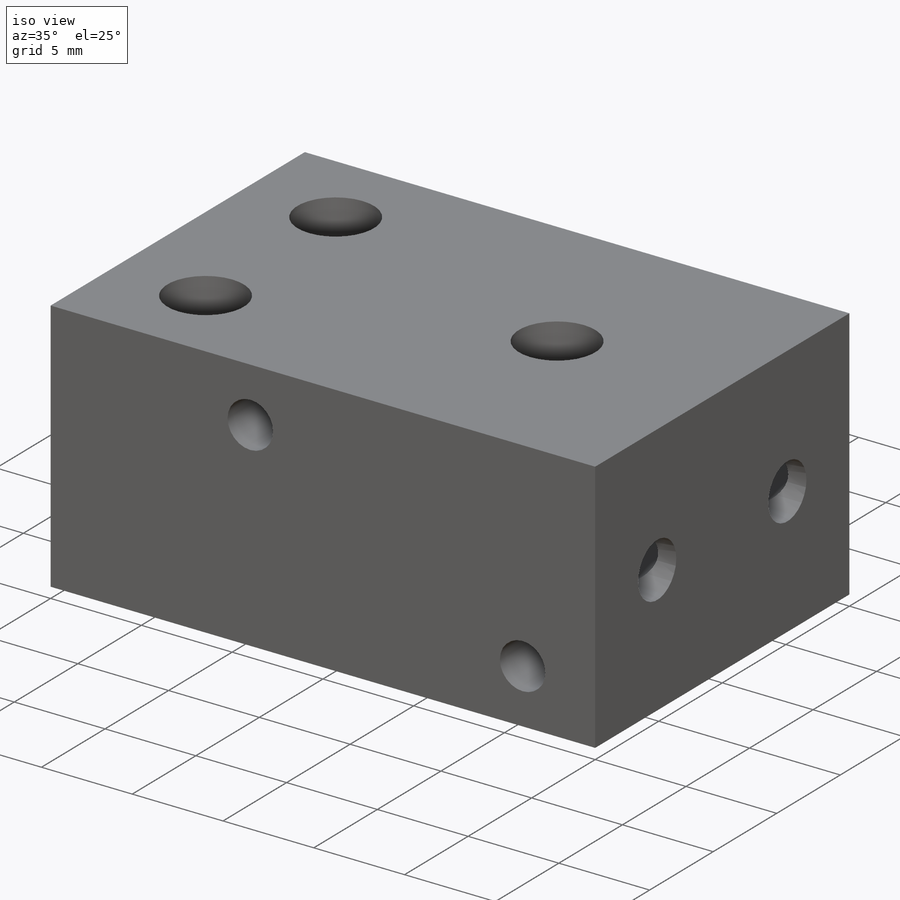
[diagram: iso view]
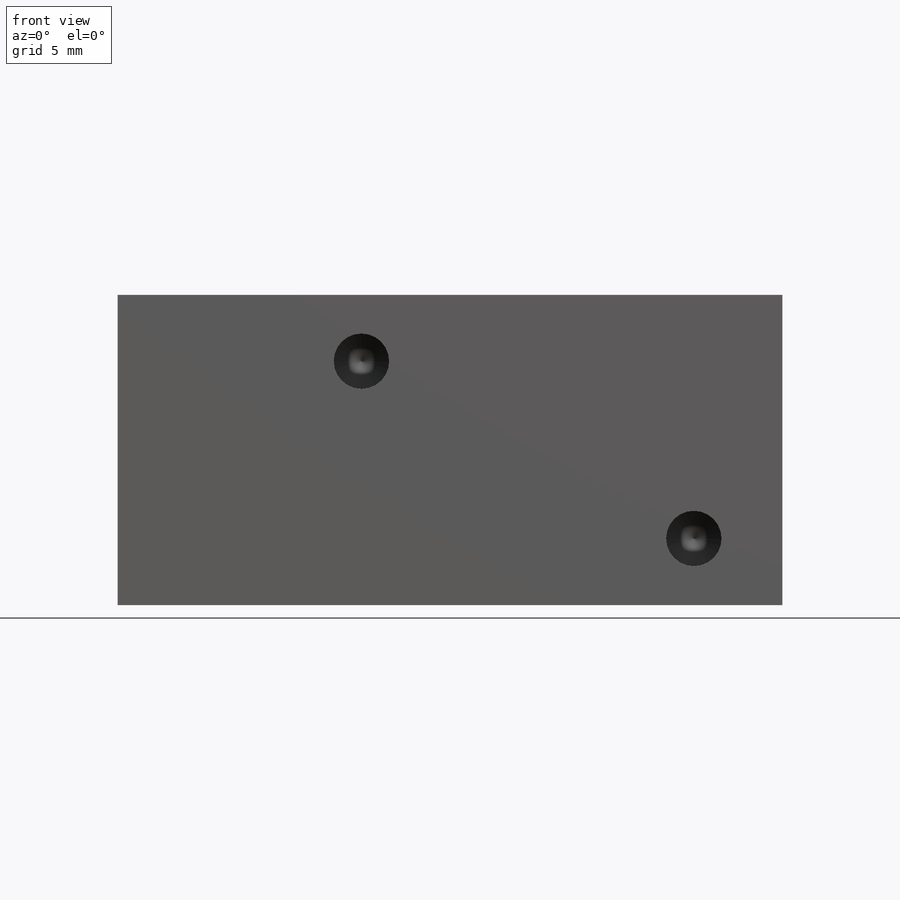
[diagram: front view]
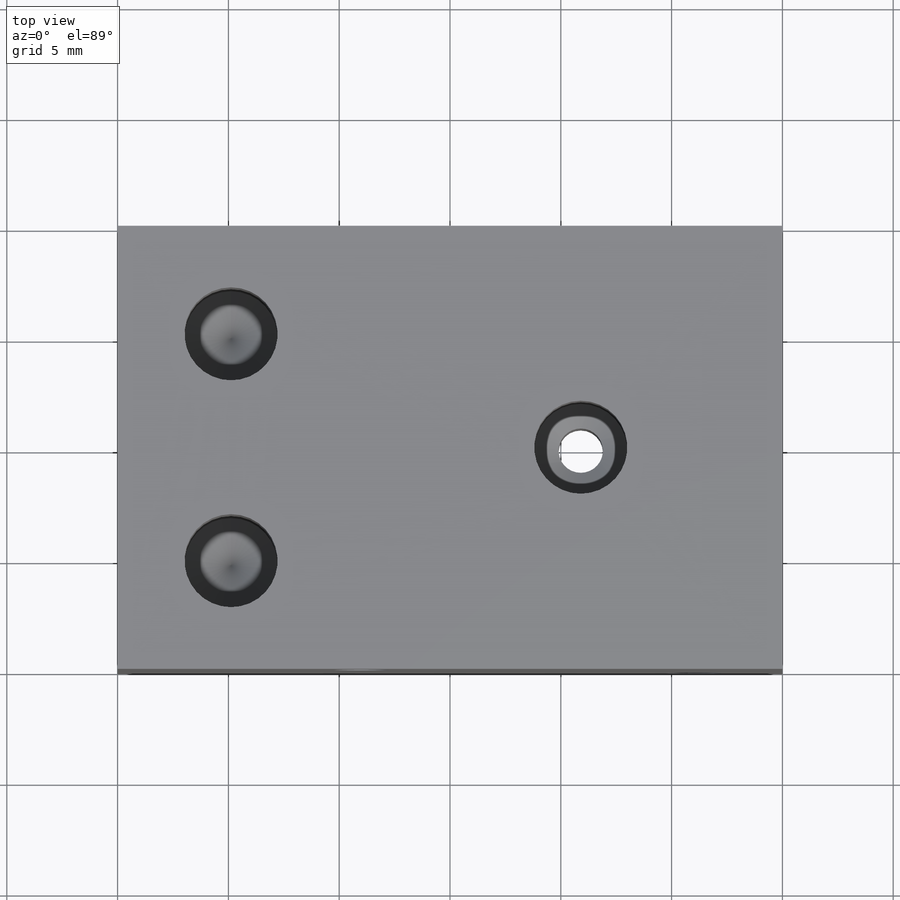
[diagram: top view]
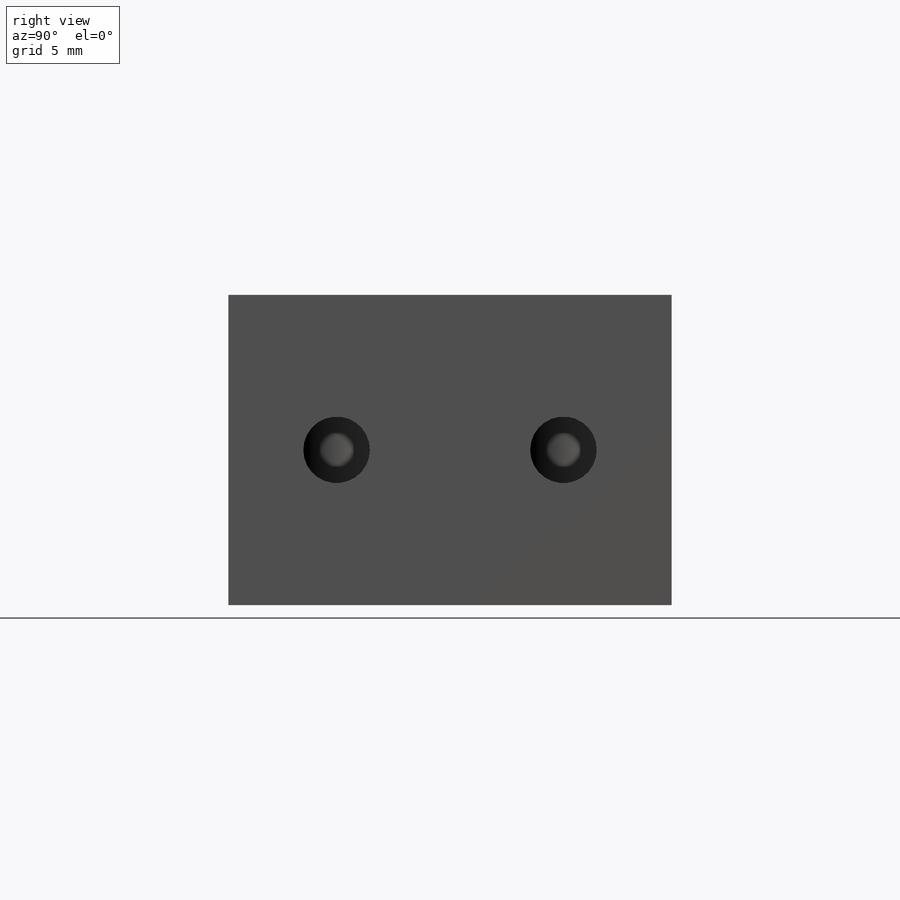
[diagram: right view]
SOLIDWORKS PART (.sldprt)
format: sldprt  version: not decoded by parser v0  size: 448,512 bytes
history: native  units: mm
features: sketch x16, hole x5, thread x4, material x1, extrude x1, cut_extrude x1, mirror x1 (+13 scaffold rows collapsed)
feature tree (42):
  scaffold x13  (default folders/planes/origin — collapsed)
  material  "Material <not specified>"
  sketch  "Sketch1"  dims[D1=30.0mm D2=14.0mm]
  extrude  "Boss-Extrude1"  Depth=20mm
  sketch  "Sketch2"  dims[c1.D1=~3.297304mm c1.D2=3.0mm c2.D1=2.0mm]
  sketch  "Sketch3"  dims[D1=5.0mm D2=2.0mm D3=1.0mm]
  cut_extrude  "Cut-Extrude2"  [1 undecoded]
  hole  "M5 Tapped Hole1"  Diameter=4.2mm Depth=8mm
  sketch  "Sketch5"
  sketch  "Sketch4"  dims[hole-wizard template sketch: 47 standard entries collapsed; hole parameters kept: c15.Tap Drill Depth=8.0mm c15.D3=~14.816244mm c15.Drill Angle=118.0deg]
  thread  "Hole Thread1"  Diameter=5mm  [1 undecoded]
  sketch  "Sketch6"  dims[D1=8.0mm D2=0.5mm D3=8.0mm D4=0.5mm]
  hole  "M5 Tapped Hole2"  Diameter=4.2mm Depth=10mm
  sketch  "Sketch8"
  sketch  "Sketch7"  dims[hole-wizard template sketch: 47 standard entries collapsed; hole parameters kept: c15.Tap Drill Depth=10.0mm c15.D3=~14.816244mm c15.Drill Angle=118.0deg]
  thread  "Hole Thread2"  Diameter=5mm  [1 undecoded]
  mirror  "Mirror1"
  sketch  "Sketch17"  dims[D1=3.0mm D2=1.0mm]
  hole  "Ø3.0 (3) Diameter Hole4"  Diameter=3mm Depth=15mm
  sketch  "Sketch19"
  sketch  "Sketch18"  dims[hole-wizard template sketch: 50 standard entries collapsed; hole parameters above]
  sketch  "Sketch20"
  hole  "Ø3.0 (3) Diameter Hole5"  Diameter=3mm Depth=25mm
  sketch  "Sketch22"
  sketch  "Sketch21"  dims[hole-wizard template sketch: 47 standard entries collapsed; hole parameters kept: c15.Hole Depth=25.0mm c15.D3=~14.816244mm c15.Drill Angle=118.0deg]
  hole  "M3 Tapped Hole1"  Diameter=2.5mm Depth=7.5mm
  sketch  "Sketch25"  dims[D1=4.0mm D2=4.0mm D3=11.0mm D4=4.0mm]
  sketch  "Sketch24"  dims[hole-wizard template sketch: 50 standard entries collapsed; hole parameters above]
  thread  "Hole Thread4"  Diameter=5mm  [1 undecoded]
  thread  "Hole Thread5"  Diameter=5mm  [1 undecoded]
decode coverage: 21 of 28 modeling features carry decoded parameters
note: ~ marks probable driven/reference dimensions
note: 5 parameter values undecoded
summary: Diameter pulled from absorbed wizard sketch
note: suppression state not decoded; provenance and decode notes live in map.json
